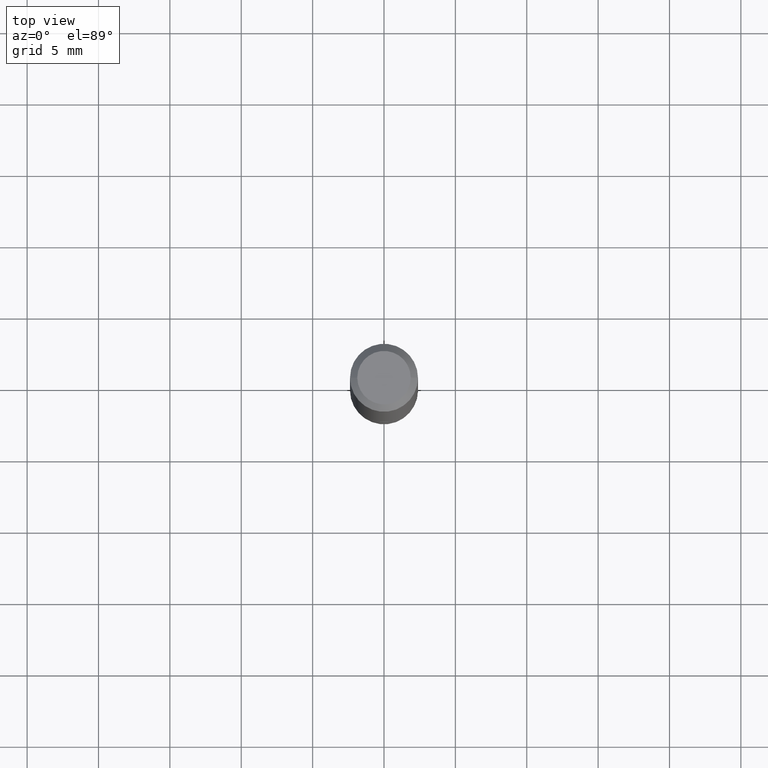
[diagram: clean part render]
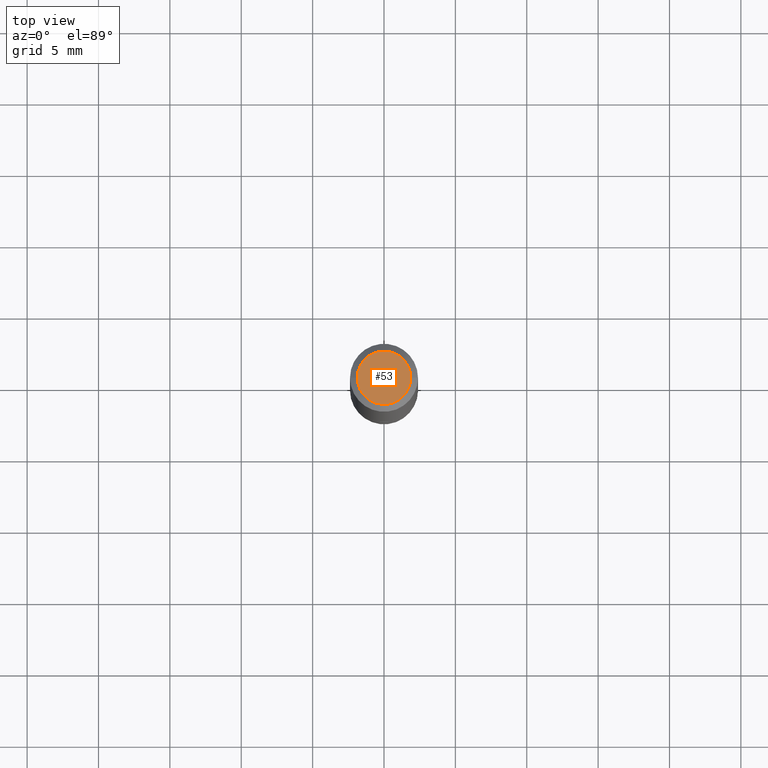
[diagram: same view with one face highlighted and labeled with its STEP entity id]
A machine part, top view. The second image highlights one B-rep face of the part: STEP entity #53.
In plain terms, the highlighted planar face has unit normal (0, -0, -1).
Its self-contained STEP definition (entity closure, byte-faithful):
#41 = PLANE ( 'NONE',  #344 ) ;
#44 = CIRCLE ( 'NONE', #167, 0.07374999999999988509 ) ;
#45 = DIRECTION ( 'NONE',  ( 1.000000000000000000, -6.982962677686265922E-15, 4.876176775795935232E-29 ) ) ;
#53 = ADVANCED_FACE ( 'NONE', ( #125 ), #41, .F. ) ;
#98 = DIRECTION ( 'NONE',  ( -1.000000000000000000, 6.982962677686265922E-15, -4.876176775795935793E-29 ) ) ;
#125 = FACE_OUTER_BOUND ( 'NONE', #256, .T. ) ;
#128 = DIRECTION ( 'NONE',  ( 1.000000000000000000, -6.982962677686265922E-15, 4.876176775795935232E-29 ) ) ;
#137 = VERTEX_POINT ( 'NONE', #214 ) ;
#156 = CARTESIAN_POINT ( 'NONE',  ( 0.000000000000000000, 0.000000000000000000, 0.000000000000000000 ) ) ;
#167 = AXIS2_PLACEMENT_3D ( 'NONE', #186, #304, #45 ) ;
#172 = ORIENTED_EDGE ( 'NONE', *, *, #230, .T. ) ;
#186 = CARTESIAN_POINT ( 'NONE',  ( 0.000000000000000000, 0.000000000000000000, 0.000000000000000000 ) ) ;
#194 = CARTESIAN_POINT ( 'NONE',  ( -0.07374999999999988509, 5.499083108677923596E-16, -3.723527850031187664E-30 ) ) ;
#205 = CIRCLE ( 'NONE', #259, 0.07374999999999988509 ) ;
#214 = CARTESIAN_POINT ( 'NONE',  ( 0.07374999999999988509, -6.094815207017961198E-16, 3.931526600461598749E-30 ) ) ;
#230 = EDGE_CURVE ( 'NONE', #137, #348, #205, .T. ) ;
#242 = ORIENTED_EDGE ( 'NONE', *, *, #248, .T. ) ;
#244 = DIRECTION ( 'NONE',  ( 2.438088387897960049E-29, -3.491481338843145188E-15, -1.000000000000000000 ) ) ;
#248 = EDGE_CURVE ( 'NONE', #348, #137, #44, .T. ) ;
#256 = EDGE_LOOP ( 'NONE', ( #242, #172 ) ) ;
#259 = AXIS2_PLACEMENT_3D ( 'NONE', #156, #335, #128 ) ;
#273 = CARTESIAN_POINT ( 'NONE',  ( 5.149934974793613022E-16, 0.07374999999999988509, -2.574967487396815385E-16 ) ) ;
#304 = DIRECTION ( 'NONE',  ( -2.445468806185136597E-29, 3.491481338843145583E-15, 1.000000000000000000 ) ) ;
#335 = DIRECTION ( 'NONE',  ( -2.445468806185136597E-29, 3.491481338843145583E-15, 1.000000000000000000 ) ) ;
#344 = AXIS2_PLACEMENT_3D ( 'NONE', #273, #244, #98 ) ;
#348 = VERTEX_POINT ( 'NONE', #194 ) ;